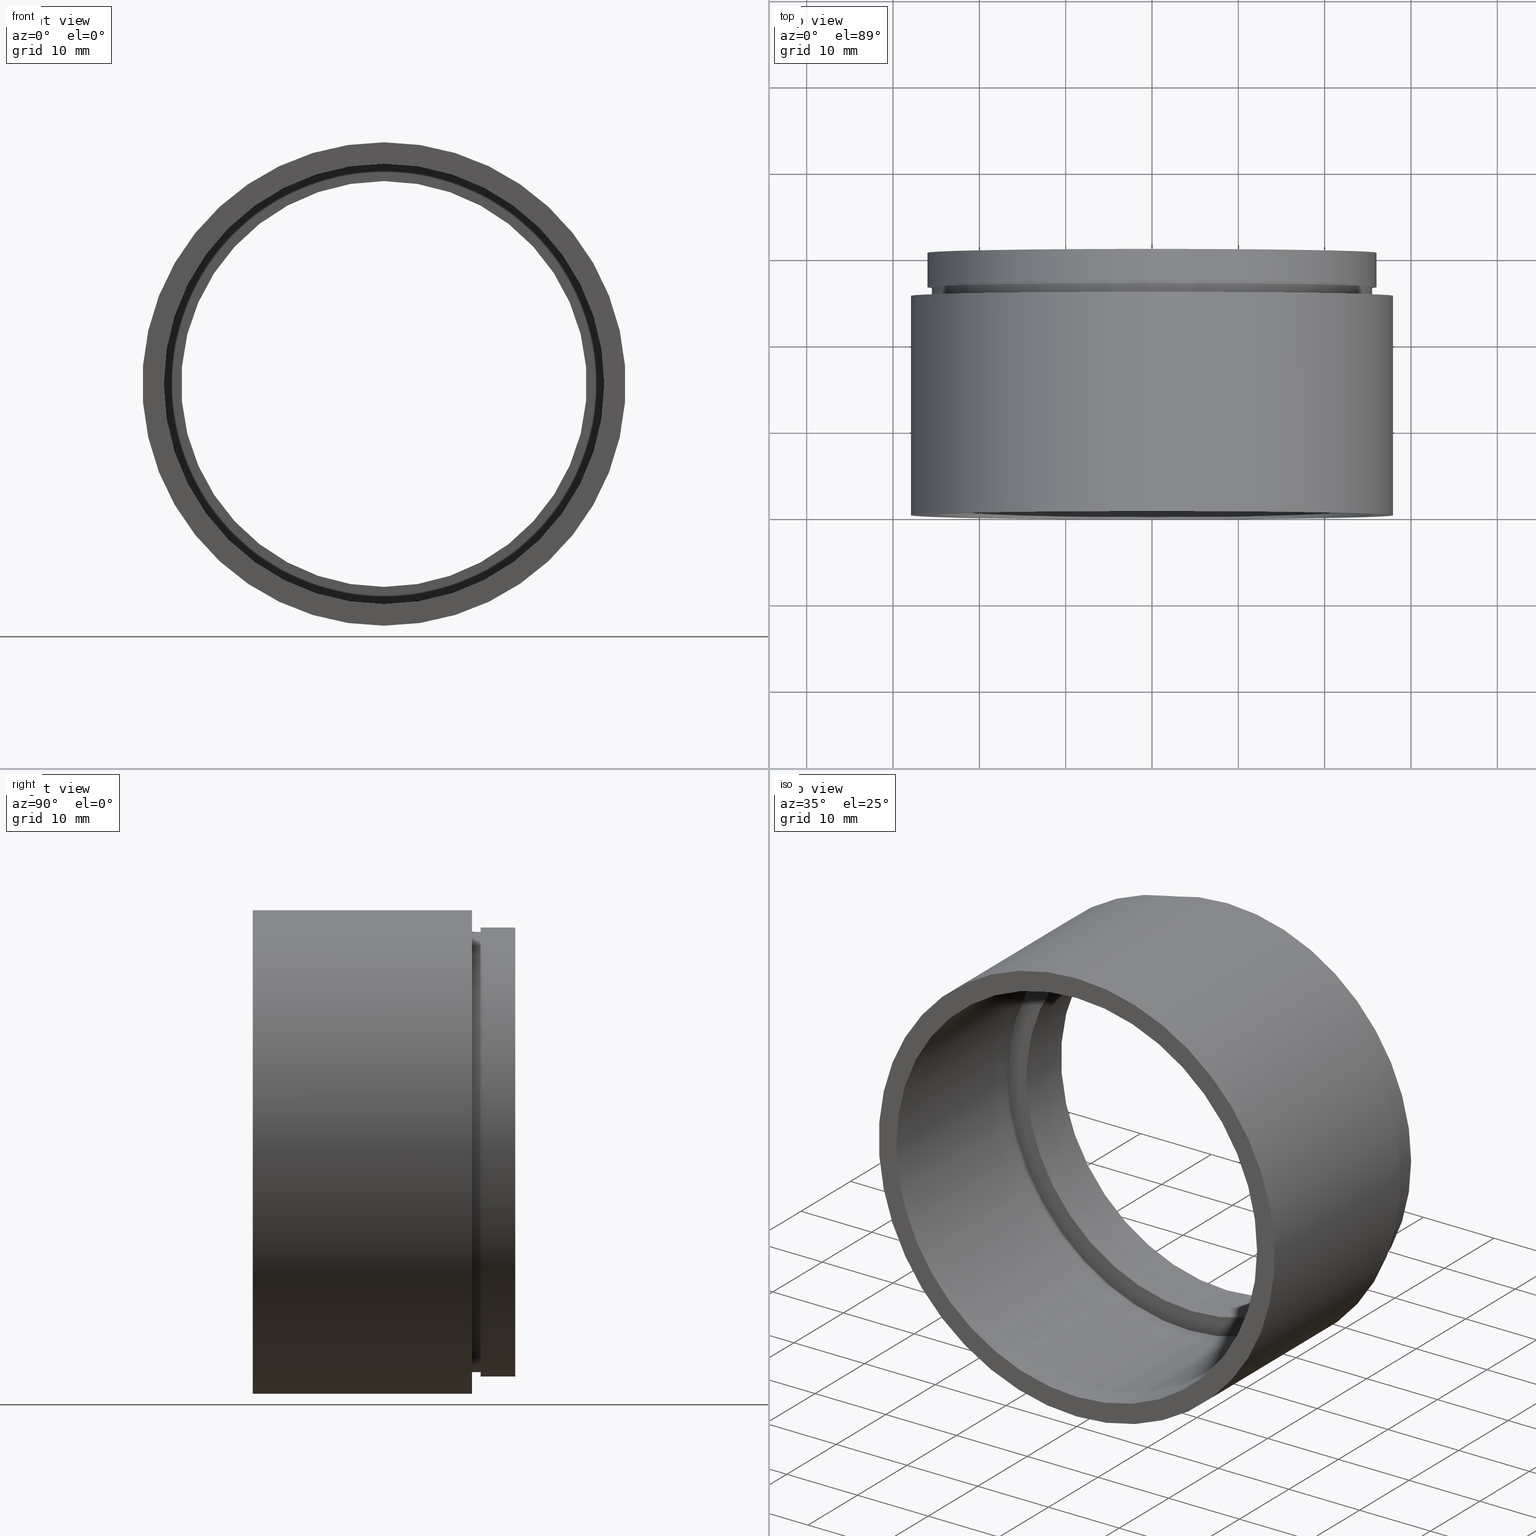
[diagram: canonical four-view strip — front | top / right | iso, engineering-drawing reading convention]
A machine part, canonical four-view strip (front | top / right | iso — engineering-drawing reading convention). The complete STEP part file that produces these views, byte-faithful:
ISO-10303-21;
HEADER;
FILE_DESCRIPTION (( 'STEP AP214' ),
    '1' );
FILE_NAME ('503003.STEP',
    '2019-09-04T05:16:09',
    ( '' ),
    ( '' ),
    'SwSTEP 2.0',
    'SolidWorks 2016',
    '' );
FILE_SCHEMA (( 'AUTOMOTIVE_DESIGN' ));
ENDSEC;

DATA;
#1 = CARTESIAN_POINT ( 'NONE',  ( 3.122849337825752200E-015, 25.39999999999997700, -25.50000000000001100 ) ) ;
#2 = PRESENTATION_LAYER_ASSIGNMENT (  '', '', ( #590 ) ) ;
#3 = DIRECTION ( 'NONE',  ( 0.0000000000000000000, 0.0000000000000000000, 1.000000000000000000 ) ) ;
#4 = CARTESIAN_POINT ( 'NONE',  ( 0.0000000000000000000, 26.39999999999997700, 0.0000000000000000000 ) ) ;
#5 = VERTEX_POINT ( 'NONE', #621 ) ;
#6 = EDGE_LOOP ( 'NONE', ( #161, #217 ) ) ;
#7 = DIRECTION ( 'NONE',  ( -0.0000000000000000000, 1.000000000000000000, -0.0000000000000000000 ) ) ;
#8 = FACE_OUTER_BOUND ( 'NONE', #469, .T. ) ;
#9 = CARTESIAN_POINT ( 'NONE',  ( 0.0000000000000000000, 161.3761669434274500, 0.0000000000000000000 ) ) ;
#10 = DIRECTION ( 'NONE',  ( 0.0000000000000000000, 0.0000000000000000000, 1.000000000000000000 ) ) ;
#11 = PRESENTATION_STYLE_ASSIGNMENT (( #225 ) ) ;
#12 = DIRECTION ( 'NONE',  ( 0.0000000000000000000, 0.0000000000000000000, 1.000000000000000000 ) ) ;
#13 = CIRCLE ( 'NONE', #137, 26.00000000000002100 ) ;
#14 = EDGE_LOOP ( 'NONE', ( #84, #276, #449, #327 ) ) ;
#15 = FACE_OUTER_BOUND ( 'NONE', #345, .T. ) ;
#16 = CARTESIAN_POINT ( 'NONE',  ( 26.10000000000001600, 23.39999999999998800, 0.0000000000000000000 ) ) ;
#17 = ADVANCED_FACE ( 'NONE', ( #533, #618 ), #58, .F. ) ;
#18 = EDGE_CURVE ( 'NONE', #520, #239, #389, .T. ) ;
#19 = DIRECTION ( 'NONE',  ( 0.0000000000000000000, 0.0000000000000000000, 1.000000000000000000 ) ) ;
#20 = DIRECTION ( 'NONE',  ( 0.0000000000000000000, 0.0000000000000000000, 1.000000000000000000 ) ) ;
#21 = AXIS2_PLACEMENT_3D ( 'NONE', #368, #316, #12 ) ;
#22 = ORIENTED_EDGE ( 'NONE', *, *, #41, .F. ) ;
#23 = ORIENTED_EDGE ( 'NONE', *, *, #167, .T. ) ;
#24 = CYLINDRICAL_SURFACE ( 'NONE', #614, 23.50000000000001400 ) ;
#25 = APPLICATION_PROTOCOL_DEFINITION ( 'draft international standard', 'automotive_design', 1998, #595 ) ;
#26 = CIRCLE ( 'NONE', #261, 28.00000000000001800 ) ;
#27 = AXIS2_PLACEMENT_3D ( 'NONE', #9, #57, #405 ) ;
#28 = ADVANCED_FACE ( 'NONE', ( #551 ), #114, .T. ) ;
#29 = AXIS2_PLACEMENT_3D ( 'NONE', #379, #128, #188 ) ;
#30 = CIRCLE ( 'NONE', #344, 23.50000000000001400 ) ;
#31 = ORIENTED_EDGE ( 'NONE', *, *, #552, .T. ) ;
#32 = DIRECTION ( 'NONE',  ( -0.0000000000000000000, 1.000000000000000000, -0.0000000000000000000 ) ) ;
#33 =( NAMED_UNIT ( * ) PLANE_ANGLE_UNIT ( ) SI_UNIT ( $, .RADIAN. ) );
#34 = PRESENTATION_LAYER_ASSIGNMENT (  '', '', ( #63 ) ) ;
#35 = EDGE_LOOP ( 'NONE', ( #490, #245 ) ) ;
#36 = CARTESIAN_POINT ( 'NONE',  ( 25.50000000000001800, 22.39999999999998400, 0.0000000000000000000 ) ) ;
#37 = UNCERTAINTY_MEASURE_WITH_UNIT (LENGTH_MEASURE( 1.000000000000000100E-005 ), #151, 'distance_accuracy_value', 'NONE');
#38 = COLOUR_RGB ( '',1.000000000000000000, 1.000000000000000000, 1.000000000000000000 ) ;
#39 = CARTESIAN_POINT ( 'NONE',  ( 0.0000000000000000000, 23.39999999999997700, 23.50000000000001400 ) ) ;
#40 =( GEOMETRIC_REPRESENTATION_CONTEXT ( 3 ) GLOBAL_UNCERTAINTY_ASSIGNED_CONTEXT ( ( #455 ) ) GLOBAL_UNIT_ASSIGNED_CONTEXT ( ( #227, #278, #174 ) ) REPRESENTATION_CONTEXT ( 'NONE', 'WORKASPACE' ) );
#41 = EDGE_CURVE ( 'NONE', #343, #572, #178, .T. ) ;
#42 =( LENGTH_UNIT ( ) NAMED_UNIT ( * ) SI_UNIT ( .MILLI., .METRE. ) );
#43 = ORIENTED_EDGE ( 'NONE', *, *, #524, .F. ) ;
#44 = DIRECTION ( 'NONE',  ( -0.0000000000000000000, 1.000000000000000000, -0.0000000000000000000 ) ) ;
#45 = CIRCLE ( 'NONE', #473, 25.50000000000001100 ) ;
#46 = CARTESIAN_POINT ( 'NONE',  ( 0.0000000000000000000, 30.39999999999998400, 26.00000000000001800 ) ) ;
#47 = CARTESIAN_POINT ( 'NONE',  ( 3.122849337825753000E-015, 22.39999999999997700, -25.50000000000001800 ) ) ;
#48 =( GEOMETRIC_REPRESENTATION_CONTEXT ( 3 ) GLOBAL_UNCERTAINTY_ASSIGNED_CONTEXT ( ( #517 ) ) GLOBAL_UNIT_ASSIGNED_CONTEXT ( ( #216, #270, #576 ) ) REPRESENTATION_CONTEXT ( 'NONE', 'WORKASPACE' ) );
#49 = UNCERTAINTY_MEASURE_WITH_UNIT (LENGTH_MEASURE( 1.000000000000000100E-005 ), #370, 'distance_accuracy_value', 'NONE');
#50 = CARTESIAN_POINT ( 'NONE',  ( 23.50000000000001400, 30.39999999999998400, 0.0000000000000000000 ) ) ;
#51 = AXIS2_PLACEMENT_3D ( 'NONE', #311, #487, #52 ) ;
#52 = DIRECTION ( 'NONE',  ( 0.0000000000000000000, 0.0000000000000000000, 1.000000000000000000 ) ) ;
#53 = VERTEX_POINT ( 'NONE', #530 ) ;
#54 = VERTEX_POINT ( 'NONE', #47 ) ;
#55 = DIRECTION ( 'NONE',  ( -0.0000000000000000000, 1.000000000000000000, -0.0000000000000000000 ) ) ;
#56 = DIRECTION ( 'NONE',  ( -0.0000000000000000000, 1.000000000000000000, -0.0000000000000000000 ) ) ;
#57 = DIRECTION ( 'NONE',  ( -0.0000000000000000000, 1.000000000000000000, -0.0000000000000000000 ) ) ;
#58 = PLANE ( 'NONE',  #117 ) ;
#59 = ORIENTED_EDGE ( 'NONE', *, *, #215, .T. ) ;
#60 =( GEOMETRIC_REPRESENTATION_CONTEXT ( 3 ) GLOBAL_UNCERTAINTY_ASSIGNED_CONTEXT ( ( #499 ) ) GLOBAL_UNIT_ASSIGNED_CONTEXT ( ( #122, #597, #467 ) ) REPRESENTATION_CONTEXT ( 'NONE', 'WORKASPACE' ) );
#61 = ORIENTED_EDGE ( 'NONE', *, *, #390, .T. ) ;
#62 = CARTESIAN_POINT ( 'NONE',  ( 0.0000000000000000000, 26.39999999999997700, 0.0000000000000000000 ) ) ;
#63 = STYLED_ITEM ( 'NONE', ( #156 ), #187 ) ;
#64 = CARTESIAN_POINT ( 'NONE',  ( 3.196328145774593900E-015, 22.39999999999997700, -26.10000000000001600 ) ) ;
#65 = VECTOR ( 'NONE', #377, 1000.000000000000000 ) ;
#66 = ADVANCED_FACE ( 'NONE', ( #585 ), #497, .T. ) ;
#67 = CARTESIAN_POINT ( 'NONE',  ( 3.122849337825753000E-015, -2.775557561562891400E-014, -25.50000000000001800 ) ) ;
#68 = ORIENTED_EDGE ( 'NONE', *, *, #552, .F. ) ;
#69 = EDGE_LOOP ( 'NONE', ( #410, #460 ) ) ;
#70 = UNCERTAINTY_MEASURE_WITH_UNIT (LENGTH_MEASURE( 1.000000000000000100E-005 ), #42, 'distance_accuracy_value', 'NONE');
#71 = CIRCLE ( 'NONE', #531, 26.10000000000001600 ) ;
#72 = MECHANICAL_DESIGN_GEOMETRIC_PRESENTATION_REPRESENTATION (  '', ( #590 ), #103 ) ;
#73 = CARTESIAN_POINT ( 'NONE',  ( 0.0000000000000000000, 22.39999999999997700, 25.50000000000001800 ) ) ;
#74 = AXIS2_PLACEMENT_3D ( 'NONE', #544, #589, #214 ) ;
#75 = EDGE_CURVE ( 'NONE', #350, #5, #30, .T. ) ;
#76 = VERTEX_POINT ( 'NONE', #67 ) ;
#77 = CARTESIAN_POINT ( 'NONE',  ( 0.0000000000000000000, 22.39999999999997700, 0.0000000000000000000 ) ) ;
#78 = UNCERTAINTY_MEASURE_WITH_UNIT (LENGTH_MEASURE( 1.000000000000000100E-005 ), #136, 'distance_accuracy_value', 'NONE');
#79 = CYLINDRICAL_SURFACE ( 'NONE', #150, 25.50000000000001800 ) ;
#80 = CARTESIAN_POINT ( 'NONE',  ( 0.0000000000000000000, 161.3761669434274500, 0.0000000000000000000 ) ) ;
#81 = CARTESIAN_POINT ( 'NONE',  ( 3.196328145774593900E-015, 161.3761669434274500, -26.10000000000001600 ) ) ;
#82 = EDGE_CURVE ( 'NONE', #239, #520, #13, .T. ) ;
#83 =( NAMED_UNIT ( * ) SI_UNIT ( $, .STERADIAN. ) SOLID_ANGLE_UNIT ( ) );
#84 = ORIENTED_EDGE ( 'NONE', *, *, #97, .F. ) ;
#85 = FACE_BOUND ( 'NONE', #426, .T. ) ;
#86 = VECTOR ( 'NONE', #88, 1000.000000000000000 ) ;
#87 = AXIS2_PLACEMENT_3D ( 'NONE', #317, #452, #369 ) ;
#88 = DIRECTION ( 'NONE',  ( -0.0000000000000000000, 1.000000000000000000, -0.0000000000000000000 ) ) ;
#89 = LINE ( 'NONE', #160, #445 ) ;
#90 = FILL_AREA_STYLE ('',( #624 ) ) ;
#91 = ORIENTED_EDGE ( 'NONE', *, *, #262, .T. ) ;
#92 = DIRECTION ( 'NONE',  ( 0.0000000000000000000, 0.0000000000000000000, 1.000000000000000000 ) ) ;
#93 = ORIENTED_EDGE ( 'NONE', *, *, #566, .F. ) ;
#94 = LINE ( 'NONE', #81, #102 ) ;
#95 = EDGE_CURVE ( 'NONE', #434, #322, #409, .T. ) ;
#96 = CARTESIAN_POINT ( 'NONE',  ( 0.0000000000000000000, 23.39999999999997700, 0.0000000000000000000 ) ) ;
#97 = EDGE_CURVE ( 'NONE', #76, #54, #280, .T. ) ;
#98 = FACE_OUTER_BOUND ( 'NONE', #275, .T. ) ;
#99 = EDGE_LOOP ( 'NONE', ( #224, #337, #91, #479 ) ) ;
#100 = CYLINDRICAL_SURFACE ( 'NONE', #27, 28.00000000000001800 ) ;
#101 = SURFACE_STYLE_USAGE ( .BOTH. , #104 ) ;
#102 = VECTOR ( 'NONE', #333, 1000.000000000000000 ) ;
#103 =( GEOMETRIC_REPRESENTATION_CONTEXT ( 3 ) GLOBAL_UNCERTAINTY_ASSIGNED_CONTEXT ( ( #70 ) ) GLOBAL_UNIT_ASSIGNED_CONTEXT ( ( #42, #563, #388 ) ) REPRESENTATION_CONTEXT ( 'NONE', 'WORKASPACE' ) );
#104 = SURFACE_SIDE_STYLE ('',( #109 ) ) ;
#105 = PRESENTATION_LAYER_ASSIGNMENT (  '', '', ( #461 ) ) ;
#106 = ORIENTED_EDGE ( 'NONE', *, *, #493, .T. ) ;
#107 = SURFACE_STYLE_USAGE ( .BOTH. , #168 ) ;
#108 = ORIENTED_EDGE ( 'NONE', *, *, #82, .F. ) ;
#109 = SURFACE_STYLE_FILL_AREA ( #403 ) ;
#110 = CARTESIAN_POINT ( 'NONE',  ( 3.429011037612590900E-015, -2.775557561562891400E-014, -28.00000000000001800 ) ) ;
#111 = DIRECTION ( 'NONE',  ( -0.0000000000000000000, 1.000000000000000000, -0.0000000000000000000 ) ) ;
#112 = CIRCLE ( 'NONE', #241, 25.50000000000001100 ) ;
#113 = DIRECTION ( 'NONE',  ( 0.0000000000000000000, 0.0000000000000000000, 1.000000000000000000 ) ) ;
#114 = CYLINDRICAL_SURFACE ( 'NONE', #453, 28.00000000000001800 ) ;
#115 = ORIENTED_EDGE ( 'NONE', *, *, #279, .T. ) ;
#116 = CARTESIAN_POINT ( 'NONE',  ( 3.184081677783121000E-015, 26.39999999999997700, -26.00000000000002100 ) ) ;
#117 = AXIS2_PLACEMENT_3D ( 'NONE', #50, #573, #308 ) ;
#118 = VECTOR ( 'NONE', #238, 1000.000000000000000 ) ;
#119 = AXIS2_PLACEMENT_3D ( 'NONE', #541, #423, #131 ) ;
#120 = DIRECTION ( 'NONE',  ( -0.0000000000000000000, 1.000000000000000000, -0.0000000000000000000 ) ) ;
#121 = FACE_BOUND ( 'NONE', #556, .T. ) ;
#122 =( LENGTH_UNIT ( ) NAMED_UNIT ( * ) SI_UNIT ( .MILLI., .METRE. ) );
#123 = CARTESIAN_POINT ( 'NONE',  ( 0.0000000000000000000, 161.3761669434274500, 28.00000000000001800 ) ) ;
#124 = ORIENTED_EDGE ( 'NONE', *, *, #215, .F. ) ;
#125 = ORIENTED_EDGE ( 'NONE', *, *, #424, .T. ) ;
#126 =( NAMED_UNIT ( * ) SI_UNIT ( $, .STERADIAN. ) SOLID_ANGLE_UNIT ( ) );
#127 = AXIS2_PLACEMENT_3D ( 'NONE', #471, #283, #338 ) ;
#128 = DIRECTION ( 'NONE',  ( -0.0000000000000000000, 1.000000000000000000, -0.0000000000000000000 ) ) ;
#129 = ADVANCED_FACE ( 'NONE', ( #98 ), #79, .F. ) ;
#130 = COLOUR_RGB ( '',1.000000000000000000, 1.000000000000000000, 1.000000000000000000 ) ;
#131 = DIRECTION ( 'NONE',  ( 0.0000000000000000000, 0.0000000000000000000, 1.000000000000000000 ) ) ;
#132 = EDGE_LOOP ( 'NONE', ( #457, #610 ) ) ;
#133 = CARTESIAN_POINT ( 'NONE',  ( 2.877919977996281900E-015, 161.3761669434274500, -23.50000000000001400 ) ) ;
#134 = PRESENTATION_STYLE_ASSIGNMENT (( #303 ) ) ;
#135 = DIRECTION ( 'NONE',  ( 0.0000000000000000000, 0.0000000000000000000, 1.000000000000000000 ) ) ;
#136 =( LENGTH_UNIT ( ) NAMED_UNIT ( * ) SI_UNIT ( .MILLI., .METRE. ) );
#137 = AXIS2_PLACEMENT_3D ( 'NONE', #447, #258, #584 ) ;
#138 = DIRECTION ( 'NONE',  ( 0.0000000000000000000, -0.0000000000000000000, -1.000000000000000000 ) ) ;
#139 = VERTEX_POINT ( 'NONE', #502 ) ;
#140 = ADVANCED_FACE ( 'NONE', ( #212 ), #472, .T. ) ;
#141 = ORIENTED_EDGE ( 'NONE', *, *, #493, .F. ) ;
#142 = CIRCLE ( 'NONE', #228, 25.50000000000001800 ) ;
#143 = STYLED_ITEM ( 'NONE', ( #256 ), #376 ) ;
#144 = EDGE_CURVE ( 'NONE', #163, #282, #297, .T. ) ;
#145 =( NAMED_UNIT ( * ) SI_UNIT ( $, .STERADIAN. ) SOLID_ANGLE_UNIT ( ) );
#146 = EDGE_CURVE ( 'NONE', #54, #609, #393, .T. ) ;
#147 = VECTOR ( 'NONE', #213, 1000.000000000000000 ) ;
#148 = DIRECTION ( 'NONE',  ( -0.0000000000000000000, 1.000000000000000000, -0.0000000000000000000 ) ) ;
#149 = CARTESIAN_POINT ( 'NONE',  ( 0.0000000000000000000, 161.3761669434274500, 0.0000000000000000000 ) ) ;
#150 = AXIS2_PLACEMENT_3D ( 'NONE', #359, #448, #260 ) ;
#151 =( LENGTH_UNIT ( ) NAMED_UNIT ( * ) SI_UNIT ( .MILLI., .METRE. ) );
#152 = MECHANICAL_DESIGN_GEOMETRIC_PRESENTATION_REPRESENTATION (  '', ( #394 ), #571 ) ;
#153 = ORIENTED_EDGE ( 'NONE', *, *, #352, .T. ) ;
#154 = ORIENTED_EDGE ( 'NONE', *, *, #234, .T. ) ;
#155 = DIRECTION ( 'NONE',  ( 0.0000000000000000000, 0.0000000000000000000, 1.000000000000000000 ) ) ;
#156 = PRESENTATION_STYLE_ASSIGNMENT (( #515 ) ) ;
#157 = PLANE ( 'NONE',  #51 ) ;
#158 = CARTESIAN_POINT ( 'NONE',  ( 0.0000000000000000000, 30.39999999999998400, 0.0000000000000000000 ) ) ;
#159 = DIRECTION ( 'NONE',  ( 0.0000000000000000000, 0.0000000000000000000, 1.000000000000000000 ) ) ;
#160 = CARTESIAN_POINT ( 'NONE',  ( 0.0000000000000000000, 161.3761669434274500, 25.50000000000001800 ) ) ;
#161 = ORIENTED_EDGE ( 'NONE', *, *, #207, .T. ) ;
#162 = MECHANICAL_DESIGN_GEOMETRIC_PRESENTATION_REPRESENTATION (  '', ( #463 ), #48 ) ;
#163 = VERTEX_POINT ( 'NONE', #495 ) ;
#164 = PRESENTATION_STYLE_ASSIGNMENT (( #612 ) ) ;
#165 = FACE_OUTER_BOUND ( 'NONE', #592, .T. ) ;
#166 = CARTESIAN_POINT ( 'NONE',  ( 28.00000000000001800, -1.408179048343280700E-014, 0.0000000000000000000 ) ) ;
#167 = EDGE_CURVE ( 'NONE', #5, #350, #603, .T. ) ;
#168 = SURFACE_SIDE_STYLE ('',( #263 ) ) ;
#169 = CYLINDRICAL_SURFACE ( 'NONE', #205, 25.50000000000001800 ) ;
#170 = ORIENTED_EDGE ( 'NONE', *, *, #75, .F. ) ;
#171 = CARTESIAN_POINT ( 'NONE',  ( 0.0000000000000000000, 25.39999999999997700, 0.0000000000000000000 ) ) ;
#172 = PRESENTATION_LAYER_ASSIGNMENT (  '', '', ( #202 ) ) ;
#173 = COLOUR_RGB ( '',1.000000000000000000, 1.000000000000000000, 1.000000000000000000 ) ;
#174 =( NAMED_UNIT ( * ) SI_UNIT ( $, .STERADIAN. ) SOLID_ANGLE_UNIT ( ) );
#175 = UNCERTAINTY_MEASURE_WITH_UNIT (LENGTH_MEASURE( 1.000000000000000100E-005 ), #619, 'distance_accuracy_value', 'NONE');
#176 = FILL_AREA_STYLE ('',( #599 ) ) ;
#177 = MECHANICAL_DESIGN_GEOMETRIC_PRESENTATION_REPRESENTATION (  '', ( #202 ), #189 ) ;
#178 = CIRCLE ( 'NONE', #406, 28.00000000000001400 ) ;
#179 = VERTEX_POINT ( 'NONE', #64 ) ;
#180 = CIRCLE ( 'NONE', #523, 23.50000000000001400 ) ;
#181 = APPLICATION_CONTEXT ( 'automotive_design' ) ;
#182 = DIRECTION ( 'NONE',  ( -0.0000000000000000000, 1.000000000000000000, -0.0000000000000000000 ) ) ;
#183 = DIRECTION ( 'NONE',  ( 0.0000000000000000000, 0.0000000000000000000, 1.000000000000000000 ) ) ;
#184 = EDGE_CURVE ( 'NONE', #226, #572, #464, .T. ) ;
#185 = DIRECTION ( 'NONE',  ( -0.0000000000000000000, 1.000000000000000000, -0.0000000000000000000 ) ) ;
#186 = EDGE_LOOP ( 'NONE', ( #417, #154, #384, #539 ) ) ;
#187 = MANIFOLD_SOLID_BREP ( '��ת1', #315 ) ;
#188 = DIRECTION ( 'NONE',  ( 0.0000000000000000000, 0.0000000000000000000, 1.000000000000000000 ) ) ;
#189 =( GEOMETRIC_REPRESENTATION_CONTEXT ( 3 ) GLOBAL_UNCERTAINTY_ASSIGNED_CONTEXT ( ( #175 ) ) GLOBAL_UNIT_ASSIGNED_CONTEXT ( ( #619, #348, #305 ) ) REPRESENTATION_CONTEXT ( 'NONE', 'WORKASPACE' ) );
#190 = PRESENTATION_STYLE_ASSIGNMENT (( #421 ) ) ;
#191 = DIRECTION ( 'NONE',  ( 0.0000000000000000000, 0.0000000000000000000, 1.000000000000000000 ) ) ;
#192 = EDGE_LOOP ( 'NONE', ( #170, #458 ) ) ;
#193 = SURFACE_SIDE_STYLE ('',( #284 ) ) ;
#194 = LINE ( 'NONE', #230, #86 ) ;
#195 = EDGE_CURVE ( 'NONE', #549, #5, #353, .T. ) ;
#196 = CARTESIAN_POINT ( 'NONE',  ( 0.0000000000000000000, 22.39999999999997700, 0.0000000000000000000 ) ) ;
#197 = DIRECTION ( 'NONE',  ( -0.0000000000000000000, 1.000000000000000000, -0.0000000000000000000 ) ) ;
#198 = EDGE_CURVE ( 'NONE', #53, #139, #268, .T. ) ;
#199 = ORIENTED_EDGE ( 'NONE', *, *, #596, .T. ) ;
#200 = ORIENTED_EDGE ( 'NONE', *, *, #362, .F. ) ;
#201 = CARTESIAN_POINT ( 'NONE',  ( 25.50000000000001100, 25.39999999999998100, 0.0000000000000000000 ) ) ;
#202 = STYLED_ITEM ( 'NONE', ( #134 ), #340 ) ;
#203 = CARTESIAN_POINT ( 'NONE',  ( 2.877919977996281900E-015, 23.39999999999997700, -23.50000000000001400 ) ) ;
#204 = SURFACE_STYLE_FILL_AREA ( #331 ) ;
#205 = AXIS2_PLACEMENT_3D ( 'NONE', #321, #120, #285 ) ;
#206 =( NAMED_UNIT ( * ) PLANE_ANGLE_UNIT ( ) SI_UNIT ( $, .RADIAN. ) );
#207 = EDGE_CURVE ( 'NONE', #357, #565, #219, .T. ) ;
#208 = FILL_AREA_STYLE_COLOUR ( '', #130 ) ;
#209 = ORIENTED_EDGE ( 'NONE', *, *, #524, .T. ) ;
#210 = ORIENTED_EDGE ( 'NONE', *, *, #146, .T. ) ;
#211 = DIRECTION ( 'NONE',  ( -0.0000000000000000000, 1.000000000000000000, -0.0000000000000000000 ) ) ;
#212 = FACE_OUTER_BOUND ( 'NONE', #586, .T. ) ;
#213 = DIRECTION ( 'NONE',  ( -0.0000000000000000000, 1.000000000000000000, -0.0000000000000000000 ) ) ;
#214 = DIRECTION ( 'NONE',  ( 0.0000000000000000000, 0.0000000000000000000, 1.000000000000000000 ) ) ;
#215 = EDGE_CURVE ( 'NONE', #485, #226, #435, .T. ) ;
#216 =( LENGTH_UNIT ( ) NAMED_UNIT ( * ) SI_UNIT ( .MILLI., .METRE. ) );
#217 = ORIENTED_EDGE ( 'NONE', *, *, #542, .T. ) ;
#218 = FACE_OUTER_BOUND ( 'NONE', #489, .T. ) ;
#219 = CIRCLE ( 'NONE', #127, 26.00000000000001800 ) ;
#220 = PLANE ( 'NONE',  #442 ) ;
#221 = PRODUCT_DEFINITION ( 'δ֪', '', #476, #591 ) ;
#222 = DIRECTION ( 'NONE',  ( -0.0000000000000000000, 1.000000000000000000, -0.0000000000000000000 ) ) ;
#223 = CIRCLE ( 'NONE', #330, 25.50000000000001100 ) ;
#224 = ORIENTED_EDGE ( 'NONE', *, *, #234, .F. ) ;
#225 = SURFACE_STYLE_USAGE ( .BOTH. , #328 ) ;
#226 = VERTEX_POINT ( 'NONE', #287 ) ;
#227 =( LENGTH_UNIT ( ) NAMED_UNIT ( * ) SI_UNIT ( .MILLI., .METRE. ) );
#228 = AXIS2_PLACEMENT_3D ( 'NONE', #253, #259, #354 ) ;
#229 = AXIS2_PLACEMENT_3D ( 'NONE', #4, #56, #536 ) ;
#230 = CARTESIAN_POINT ( 'NONE',  ( 3.184081677783120200E-015, 161.3761669434274500, -26.00000000000001800 ) ) ;
#231 = DIRECTION ( 'NONE',  ( -0.0000000000000000000, 1.000000000000000000, -0.0000000000000000000 ) ) ;
#232 = PRESENTATION_LAYER_ASSIGNMENT (  '', '', ( #360 ) ) ;
#233 = ORIENTED_EDGE ( 'NONE', *, *, #431, .T. ) ;
#234 = EDGE_CURVE ( 'NONE', #520, #565, #194, .T. ) ;
#235 = DIRECTION ( 'NONE',  ( 0.0000000000000000000, 0.0000000000000000000, 1.000000000000000000 ) ) ;
#236 = FACE_OUTER_BOUND ( 'NONE', #470, .T. ) ;
#237 = EDGE_CURVE ( 'NONE', #485, #343, #559, .T. ) ;
#238 = DIRECTION ( 'NONE',  ( -0.0000000000000000000, 1.000000000000000000, -0.0000000000000000000 ) ) ;
#239 = VERTEX_POINT ( 'NONE', #606 ) ;
#240 = SURFACE_STYLE_USAGE ( .BOTH. , #522 ) ;
#241 = AXIS2_PLACEMENT_3D ( 'NONE', #171, #222, #550 ) ;
#242 = VERTEX_POINT ( 'NONE', #39 ) ;
#243 = EDGE_CURVE ( 'NONE', #179, #53, #94, .T. ) ;
#244 = CARTESIAN_POINT ( 'NONE',  ( 3.122849337825752200E-015, 26.39999999999997700, -25.50000000000001100 ) ) ;
#245 = ORIENTED_EDGE ( 'NONE', *, *, #198, .F. ) ;
#246 =( LENGTH_UNIT ( ) NAMED_UNIT ( * ) SI_UNIT ( .MILLI., .METRE. ) );
#247 = FACE_OUTER_BOUND ( 'NONE', #99, .T. ) ;
#248 = MECHANICAL_DESIGN_GEOMETRIC_PRESENTATION_REPRESENTATION (  '', ( #63 ), #503 ) ;
#249 = DIRECTION ( 'NONE',  ( -0.0000000000000000000, 1.000000000000000000, -0.0000000000000000000 ) ) ;
#250 = DIRECTION ( 'NONE',  ( -0.0000000000000000000, 1.000000000000000000, -0.0000000000000000000 ) ) ;
#251 =( GEOMETRIC_REPRESENTATION_CONTEXT ( 3 ) GLOBAL_UNCERTAINTY_ASSIGNED_CONTEXT ( ( #443 ) ) GLOBAL_UNIT_ASSIGNED_CONTEXT ( ( #246, #429, #145 ) ) REPRESENTATION_CONTEXT ( 'NONE', 'WORKASPACE' ) );
#252 = DIRECTION ( 'NONE',  ( 0.0000000000000000000, -0.0000000000000000000, -1.000000000000000000 ) ) ;
#253 = CARTESIAN_POINT ( 'NONE',  ( 0.0000000000000000000, -2.775557561562891400E-014, 0.0000000000000000000 ) ) ;
#254 = ORIENTED_EDGE ( 'NONE', *, *, #195, .F. ) ;
#255 = ORIENTED_EDGE ( 'NONE', *, *, #312, .T. ) ;
#256 = PRESENTATION_STYLE_ASSIGNMENT (( #101 ) ) ;
#257 = CARTESIAN_POINT ( 'NONE',  ( 0.0000000000000000000, 22.39999999999997700, 0.0000000000000000000 ) ) ;
#258 = DIRECTION ( 'NONE',  ( -0.0000000000000000000, 1.000000000000000000, -0.0000000000000000000 ) ) ;
#259 = DIRECTION ( 'NONE',  ( -0.0000000000000000000, 1.000000000000000000, -0.0000000000000000000 ) ) ;
#260 = DIRECTION ( 'NONE',  ( 0.0000000000000000000, 0.0000000000000000000, 1.000000000000000000 ) ) ;
#261 = AXIS2_PLACEMENT_3D ( 'NONE', #265, #501, #450 ) ;
#262 = EDGE_CURVE ( 'NONE', #239, #357, #577, .T. ) ;
#263 = SURFACE_STYLE_FILL_AREA ( #313 ) ;
#264 = ORIENTED_EDGE ( 'NONE', *, *, #579, .F. ) ;
#265 = CARTESIAN_POINT ( 'NONE',  ( 0.0000000000000000000, -2.775557561562891400E-014, 0.0000000000000000000 ) ) ;
#266 = ADVANCED_FACE ( 'NONE', ( #346, #323 ), #518, .F. ) ;
#267 = CARTESIAN_POINT ( 'NONE',  ( 0.0000000000000000000, 161.3761669434274500, 25.50000000000001100 ) ) ;
#268 = CIRCLE ( 'NONE', #318, 26.10000000000001600 ) ;
#269 = CARTESIAN_POINT ( 'NONE',  ( 0.0000000000000000000, 25.39999999999997700, 28.00000000000001400 ) ) ;
#270 =( NAMED_UNIT ( * ) PLANE_ANGLE_UNIT ( ) SI_UNIT ( $, .RADIAN. ) );
#271 = DIRECTION ( 'NONE',  ( -0.0000000000000000000, 1.000000000000000000, -0.0000000000000000000 ) ) ;
#272 = FACE_OUTER_BOUND ( 'NONE', #14, .T. ) ;
#273 = DIRECTION ( 'NONE',  ( 0.0000000000000000000, 0.0000000000000000000, 1.000000000000000000 ) ) ;
#274 = AXIS2_PLACEMENT_3D ( 'NONE', #568, #44, #482 ) ;
#275 = EDGE_LOOP ( 'NONE', ( #505, #292, #210, #93 ) ) ;
#276 = ORIENTED_EDGE ( 'NONE', *, *, #390, .F. ) ;
#277 = FACE_BOUND ( 'NONE', #601, .T. ) ;
#278 =( NAMED_UNIT ( * ) PLANE_ANGLE_UNIT ( ) SI_UNIT ( $, .RADIAN. ) );
#279 = EDGE_CURVE ( 'NONE', #76, #391, #411, .T. ) ;
#280 = LINE ( 'NONE', #363, #511 ) ;
#281 = SURFACE_SIDE_STYLE ('',( #204 ) ) ;
#282 = VERTEX_POINT ( 'NONE', #468 ) ;
#283 = DIRECTION ( 'NONE',  ( -0.0000000000000000000, 1.000000000000000000, -0.0000000000000000000 ) ) ;
#284 = SURFACE_STYLE_FILL_AREA ( #392 ) ;
#285 = DIRECTION ( 'NONE',  ( 0.0000000000000000000, 0.0000000000000000000, 1.000000000000000000 ) ) ;
#286 = PRESENTATION_LAYER_ASSIGNMENT (  '', '', ( #463 ) ) ;
#287 = CARTESIAN_POINT ( 'NONE',  ( 0.0000000000000000000, -2.775557561562891400E-014, 28.00000000000001800 ) ) ;
#288 = CIRCLE ( 'NONE', #21, 26.10000000000001600 ) ;
#289 = FILL_AREA_STYLE ('',( #381 ) ) ;
#290 = ADVANCED_FACE ( 'NONE', ( #15 ), #302, .F. ) ;
#291 = MECHANICAL_DESIGN_GEOMETRIC_PRESENTATION_REPRESENTATION (  '', ( #360 ), #40 ) ;
#292 = ORIENTED_EDGE ( 'NONE', *, *, #97, .T. ) ;
#293 = EDGE_LOOP ( 'NONE', ( #564, #364, #307, #264 ) ) ;
#294 = SURFACE_STYLE_FILL_AREA ( #90 ) ;
#295 = DIRECTION ( 'NONE',  ( -0.0000000000000000000, 1.000000000000000000, -0.0000000000000000000 ) ) ;
#296 = FACE_OUTER_BOUND ( 'NONE', #293, .T. ) ;
#297 = LINE ( 'NONE', #267, #147 ) ;
#298 = CARTESIAN_POINT ( 'NONE',  ( 0.0000000000000000000, 26.39999999999997700, 0.0000000000000000000 ) ) ;
#299 = ORIENTED_EDGE ( 'NONE', *, *, #41, .T. ) ;
#300 = CYLINDRICAL_SURFACE ( 'NONE', #430, 23.50000000000001400 ) ;
#301 = AXIS2_PLACEMENT_3D ( 'NONE', #560, #32, #235 ) ;
#302 = CYLINDRICAL_SURFACE ( 'NONE', #558, 26.10000000000001600 ) ;
#303 = SURFACE_STYLE_USAGE ( .BOTH. , #193 ) ;
#304 = DIRECTION ( 'NONE',  ( -0.0000000000000000000, 1.000000000000000000, -0.0000000000000000000 ) ) ;
#305 =( NAMED_UNIT ( * ) SI_UNIT ( $, .STERADIAN. ) SOLID_ANGLE_UNIT ( ) );
#306 = ORIENTED_EDGE ( 'NONE', *, *, #237, .T. ) ;
#307 = ORIENTED_EDGE ( 'NONE', *, *, #198, .T. ) ;
#308 = DIRECTION ( 'NONE',  ( 0.0000000000000000000, -0.0000000000000000000, -1.000000000000000000 ) ) ;
#309 = CARTESIAN_POINT ( 'NONE',  ( 0.0000000000000000000, 23.39999999999997700, 0.0000000000000000000 ) ) ;
#310 = FACE_OUTER_BOUND ( 'NONE', #35, .T. ) ;
#311 = CARTESIAN_POINT ( 'NONE',  ( 26.00000000000002100, 26.39999999999998100, 0.0000000000000000000 ) ) ;
#312 = EDGE_CURVE ( 'NONE', #322, #282, #45, .T. ) ;
#313 = FILL_AREA_STYLE ('',( #208 ) ) ;
#314 = CARTESIAN_POINT ( 'NONE',  ( 0.0000000000000000000, 22.39999999999997700, 26.10000000000001600 ) ) ;
#315 = CLOSED_SHELL ( 'NONE', ( #475, #129, #28, #66, #366, #376, #340, #17, #334, #383, #140, #466, #413, #554, #608, #266, #290, #598 ) ) ;
#316 = DIRECTION ( 'NONE',  ( -0.0000000000000000000, 1.000000000000000000, -0.0000000000000000000 ) ) ;
#317 = CARTESIAN_POINT ( 'NONE',  ( 0.0000000000000000000, 23.39999999999997700, 0.0000000000000000000 ) ) ;
#318 = AXIS2_PLACEMENT_3D ( 'NONE', #510, #231, #135 ) ;
#319 = DIRECTION ( 'NONE',  ( -0.0000000000000000000, 1.000000000000000000, -0.0000000000000000000 ) ) ;
#320 = ORIENTED_EDGE ( 'NONE', *, *, #431, .F. ) ;
#321 = CARTESIAN_POINT ( 'NONE',  ( 0.0000000000000000000, 161.3761669434274500, 0.0000000000000000000 ) ) ;
#322 = VERTEX_POINT ( 'NONE', #244 ) ;
#323 = FACE_OUTER_BOUND ( 'NONE', #69, .T. ) ;
#324 = AXIS2_PLACEMENT_3D ( 'NONE', #257, #249, #3 ) ;
#325 = PRODUCT_CONTEXT ( 'NONE', #595, 'mechanical' ) ;
#326 = LINE ( 'NONE', #587, #545 ) ;
#327 = ORIENTED_EDGE ( 'NONE', *, *, #380, .T. ) ;
#328 = SURFACE_SIDE_STYLE ('',( #375 ) ) ;
#329 = VECTOR ( 'NONE', #182, 1000.000000000000000 ) ;
#330 = AXIS2_PLACEMENT_3D ( 'NONE', #62, #494, #581 ) ;
#331 = FILL_AREA_STYLE ('',( #496 ) ) ;
#332 = EDGE_CURVE ( 'NONE', #179, #401, #71, .T. ) ;
#333 = DIRECTION ( 'NONE',  ( -0.0000000000000000000, 1.000000000000000000, -0.0000000000000000000 ) ) ;
#334 = ADVANCED_FACE ( 'NONE', ( #247 ), #623, .T. ) ;
#335 = ORIENTED_EDGE ( 'NONE', *, *, #237, .F. ) ;
#336 = DIRECTION ( 'NONE',  ( 0.0000000000000000000, -1.000000000000000000, 0.0000000000000000000 ) ) ;
#337 = ORIENTED_EDGE ( 'NONE', *, *, #18, .T. ) ;
#338 = DIRECTION ( 'NONE',  ( 0.0000000000000000000, 0.0000000000000000000, 1.000000000000000000 ) ) ;
#339 = CARTESIAN_POINT ( 'NONE',  ( 0.0000000000000000000, 161.3761669434274500, 26.00000000000001800 ) ) ;
#340 = ADVANCED_FACE ( 'NONE', ( #165 ), #300, .F. ) ;
#341 = DIRECTION ( 'NONE',  ( -0.0000000000000000000, 1.000000000000000000, -0.0000000000000000000 ) ) ;
#342 = MECHANICAL_DESIGN_GEOMETRIC_PRESENTATION_REPRESENTATION (  '', ( #143 ), #504 ) ;
#343 = VERTEX_POINT ( 'NONE', #387 ) ;
#344 = AXIS2_PLACEMENT_3D ( 'NONE', #158, #543, #19 ) ;
#345 = EDGE_LOOP ( 'NONE', ( #462, #527, #440, #199 ) ) ;
#346 = FACE_BOUND ( 'NONE', #132, .T. ) ;
#347 = DIRECTION ( 'NONE',  ( -0.0000000000000000000, 1.000000000000000000, -0.0000000000000000000 ) ) ;
#348 =( NAMED_UNIT ( * ) PLANE_ANGLE_UNIT ( ) SI_UNIT ( $, .RADIAN. ) );
#349 = DIRECTION ( 'NONE',  ( -0.0000000000000000000, 1.000000000000000000, -0.0000000000000000000 ) ) ;
#350 = VERTEX_POINT ( 'NONE', #433 ) ;
#351 = CIRCLE ( 'NONE', #324, 25.50000000000001800 ) ;
#352 = EDGE_CURVE ( 'NONE', #242, #549, #180, .T. ) ;
#353 = LINE ( 'NONE', #133, #329 ) ;
#354 = DIRECTION ( 'NONE',  ( 0.0000000000000000000, 0.0000000000000000000, 1.000000000000000000 ) ) ;
#355 = SHAPE_DEFINITION_REPRESENTATION ( #562, #474 ) ;
#356 = ORIENTED_EDGE ( 'NONE', *, *, #184, .T. ) ;
#357 = VERTEX_POINT ( 'NONE', #46 ) ;
#358 = CARTESIAN_POINT ( 'NONE',  ( 0.0000000000000000000, -2.775557561562891400E-014, 25.50000000000001800 ) ) ;
#359 = CARTESIAN_POINT ( 'NONE',  ( 0.0000000000000000000, 161.3761669434274500, 0.0000000000000000000 ) ) ;
#360 = STYLED_ITEM ( 'NONE', ( #11 ), #474 ) ;
#361 = DIRECTION ( 'NONE',  ( -0.0000000000000000000, 1.000000000000000000, -0.0000000000000000000 ) ) ;
#362 = EDGE_CURVE ( 'NONE', #242, #350, #622, .T. ) ;
#363 = CARTESIAN_POINT ( 'NONE',  ( 3.122849337825753000E-015, 161.3761669434274500, -25.50000000000001800 ) ) ;
#364 = ORIENTED_EDGE ( 'NONE', *, *, #243, .T. ) ;
#365 = AXIS2_PLACEMENT_3D ( 'NONE', #309, #538, #535 ) ;
#366 = ADVANCED_FACE ( 'NONE', ( #540 ), #500, .T. ) ;
#367 = COLOUR_RGB ( '',1.000000000000000000, 1.000000000000000000, 1.000000000000000000 ) ;
#368 = CARTESIAN_POINT ( 'NONE',  ( 0.0000000000000000000, 22.39999999999997700, 0.0000000000000000000 ) ) ;
#369 = DIRECTION ( 'NONE',  ( 0.0000000000000000000, 0.0000000000000000000, 1.000000000000000000 ) ) ;
#370 =( LENGTH_UNIT ( ) NAMED_UNIT ( * ) SI_UNIT ( .MILLI., .METRE. ) );
#371 = ORIENTED_EDGE ( 'NONE', *, *, #362, .T. ) ;
#372 = VECTOR ( 'NONE', #567, 1000.000000000000000 ) ;
#373 = PRESENTATION_LAYER_ASSIGNMENT (  '', '', ( #394 ) ) ;
#374 = AXIS2_PLACEMENT_3D ( 'NONE', #407, #580, #451 ) ;
#375 = SURFACE_STYLE_FILL_AREA ( #176 ) ;
#376 = ADVANCED_FACE ( 'NONE', ( #594 ), #24, .F. ) ;
#377 = DIRECTION ( 'NONE',  ( -0.0000000000000000000, 1.000000000000000000, -0.0000000000000000000 ) ) ;
#378 = ORIENTED_EDGE ( 'NONE', *, *, #95, .F. ) ;
#379 = CARTESIAN_POINT ( 'NONE',  ( 0.0000000000000000000, 30.39999999999998400, 0.0000000000000000000 ) ) ;
#380 = EDGE_CURVE ( 'NONE', #609, #54, #351, .T. ) ;
#381 = FILL_AREA_STYLE_COLOUR ( '', #38 ) ;
#382 = AXIS2_PLACEMENT_3D ( 'NONE', #149, #197, #92 ) ;
#383 = ADVANCED_FACE ( 'NONE', ( #218, #85 ), #157, .F. ) ;
#384 = ORIENTED_EDGE ( 'NONE', *, *, #207, .F. ) ;
#385 = EDGE_LOOP ( 'NONE', ( #106, #306, #519, #557 ) ) ;
#386 = SURFACE_SIDE_STYLE ('',( #521 ) ) ;
#387 = CARTESIAN_POINT ( 'NONE',  ( 3.429011037612590500E-015, 25.39999999999997700, -28.00000000000001400 ) ) ;
#388 =( NAMED_UNIT ( * ) SI_UNIT ( $, .STERADIAN. ) SOLID_ANGLE_UNIT ( ) );
#389 = CIRCLE ( 'NONE', #229, 26.00000000000002100 ) ;
#390 = EDGE_CURVE ( 'NONE', #391, #76, #142, .T. ) ;
#391 = VERTEX_POINT ( 'NONE', #358 ) ;
#392 = FILL_AREA_STYLE ('',( #613 ) ) ;
#393 = CIRCLE ( 'NONE', #615, 25.50000000000001800 ) ;
#394 = STYLED_ITEM ( 'NONE', ( #190 ), #608 ) ;
#395 = FILL_AREA_STYLE_COLOUR ( '', #480 ) ;
#396 = CARTESIAN_POINT ( 'NONE',  ( 0.0000000000000000000, 161.3761669434274500, 0.0000000000000000000 ) ) ;
#397 = COLOUR_RGB ( '',1.000000000000000000, 1.000000000000000000, 1.000000000000000000 ) ;
#398 = CARTESIAN_POINT ( 'NONE',  ( 0.0000000000000000000, 161.3761669434274500, 0.0000000000000000000 ) ) ;
#399 = ORIENTED_EDGE ( 'NONE', *, *, #312, .F. ) ;
#400 = DIRECTION ( 'NONE',  ( 0.0000000000000000000, 0.0000000000000000000, 1.000000000000000000 ) ) ;
#401 = VERTEX_POINT ( 'NONE', #314 ) ;
#402 = COLOUR_RGB ( '',1.000000000000000000, 1.000000000000000000, 1.000000000000000000 ) ;
#403 = FILL_AREA_STYLE ('',( #395 ) ) ;
#404 = AXIS2_PLACEMENT_3D ( 'NONE', #420, #183, #513 ) ;
#405 = DIRECTION ( 'NONE',  ( 0.0000000000000000000, 0.0000000000000000000, 1.000000000000000000 ) ) ;
#406 = AXIS2_PLACEMENT_3D ( 'NONE', #437, #319, #10 ) ;
#407 = CARTESIAN_POINT ( 'NONE',  ( 0.0000000000000000000, 161.3761669434274500, 0.0000000000000000000 ) ) ;
#408 = CIRCLE ( 'NONE', #74, 26.00000000000001800 ) ;
#409 = LINE ( 'NONE', #454, #432 ) ;
#410 = ORIENTED_EDGE ( 'NONE', *, *, #583, .T. ) ;
#411 = CIRCLE ( 'NONE', #439, 25.50000000000001800 ) ;
#412 = DIRECTION ( 'NONE',  ( -0.0000000000000000000, 1.000000000000000000, 0.0000000000000000000 ) ) ;
#413 = ADVANCED_FACE ( 'NONE', ( #8 ), #100, .T. ) ;
#414 = PLANE ( 'NONE',  #546 ) ;
#415 = FACE_BOUND ( 'NONE', #427, .T. ) ;
#416 = AXIS2_PLACEMENT_3D ( 'NONE', #36, #336, #138 ) ;
#417 = ORIENTED_EDGE ( 'NONE', *, *, #82, .T. ) ;
#418 = AXIS2_PLACEMENT_3D ( 'NONE', #398, #55, #155 ) ;
#419 = EDGE_LOOP ( 'NONE', ( #548, #620, #43, #422 ) ) ;
#420 = CARTESIAN_POINT ( 'NONE',  ( 0.0000000000000000000, 0.0000000000000000000, 0.0000000000000000000 ) ) ;
#421 = SURFACE_STYLE_USAGE ( .BOTH. , #281 ) ;
#422 = ORIENTED_EDGE ( 'NONE', *, *, #144, .F. ) ;
#423 = DIRECTION ( 'NONE',  ( -0.0000000000000000000, 1.000000000000000000, -0.0000000000000000000 ) ) ;
#424 = EDGE_CURVE ( 'NONE', #572, #343, #611, .T. ) ;
#425 = SURFACE_SIDE_STYLE ('',( #588 ) ) ;
#426 = EDGE_LOOP ( 'NONE', ( #209, #255 ) ) ;
#427 = EDGE_LOOP ( 'NONE', ( #61, #115 ) ) ;
#428 = CARTESIAN_POINT ( 'NONE',  ( 0.0000000000000000000, 161.3761669434274500, 0.0000000000000000000 ) ) ;
#429 =( NAMED_UNIT ( * ) PLANE_ANGLE_UNIT ( ) SI_UNIT ( $, .RADIAN. ) );
#430 = AXIS2_PLACEMENT_3D ( 'NONE', #428, #295, #617 ) ;
#431 = EDGE_CURVE ( 'NONE', #549, #242, #508, .T. ) ;
#432 = VECTOR ( 'NONE', #111, 1000.000000000000000 ) ;
#433 = CARTESIAN_POINT ( 'NONE',  ( 0.0000000000000000000, 30.39999999999998400, 23.50000000000001400 ) ) ;
#434 = VERTEX_POINT ( 'NONE', #1 ) ;
#435 = CIRCLE ( 'NONE', #301, 28.00000000000001800 ) ;
#436 = FILL_AREA_STYLE_COLOUR ( '', #402 ) ;
#437 = CARTESIAN_POINT ( 'NONE',  ( 0.0000000000000000000, 25.39999999999997700, 0.0000000000000000000 ) ) ;
#438 =( NAMED_UNIT ( * ) SI_UNIT ( $, .STERADIAN. ) SOLID_ANGLE_UNIT ( ) );
#439 = AXIS2_PLACEMENT_3D ( 'NONE', #528, #349, #484 ) ;
#440 = ORIENTED_EDGE ( 'NONE', *, *, #579, .T. ) ;
#441 = DIRECTION ( 'NONE',  ( 0.0000000000000000000, -1.000000000000000000, 0.0000000000000000000 ) ) ;
#442 = AXIS2_PLACEMENT_3D ( 'NONE', #166, #412, #20 ) ;
#443 = UNCERTAINTY_MEASURE_WITH_UNIT (LENGTH_MEASURE( 1.000000000000000100E-005 ), #246, 'distance_accuracy_value', 'NONE');
#444 = CARTESIAN_POINT ( 'NONE',  ( 0.0000000000000000000, 25.39999999999997700, 0.0000000000000000000 ) ) ;
#445 = VECTOR ( 'NONE', #271, 1000.000000000000000 ) ;
#446 = DIRECTION ( 'NONE',  ( -0.0000000000000000000, 1.000000000000000000, -0.0000000000000000000 ) ) ;
#447 = CARTESIAN_POINT ( 'NONE',  ( 0.0000000000000000000, 26.39999999999997700, 0.0000000000000000000 ) ) ;
#448 = DIRECTION ( 'NONE',  ( -0.0000000000000000000, 1.000000000000000000, -0.0000000000000000000 ) ) ;
#449 = ORIENTED_EDGE ( 'NONE', *, *, #566, .T. ) ;
#450 = DIRECTION ( 'NONE',  ( 0.0000000000000000000, 0.0000000000000000000, 1.000000000000000000 ) ) ;
#451 = DIRECTION ( 'NONE',  ( 0.0000000000000000000, 0.0000000000000000000, 1.000000000000000000 ) ) ;
#452 = DIRECTION ( 'NONE',  ( -0.0000000000000000000, 1.000000000000000000, -0.0000000000000000000 ) ) ;
#453 = AXIS2_PLACEMENT_3D ( 'NONE', #396, #250, #400 ) ;
#454 = CARTESIAN_POINT ( 'NONE',  ( 3.122849337825752200E-015, 161.3761669434274500, -25.50000000000001100 ) ) ;
#455 = UNCERTAINTY_MEASURE_WITH_UNIT (LENGTH_MEASURE( 1.000000000000000100E-005 ), #227, 'distance_accuracy_value', 'NONE');
#456 = MECHANICAL_DESIGN_GEOMETRIC_PRESENTATION_REPRESENTATION (  '', ( #461 ), #251 ) ;
#457 = ORIENTED_EDGE ( 'NONE', *, *, #380, .F. ) ;
#458 = ORIENTED_EDGE ( 'NONE', *, *, #167, .F. ) ;
#459 =( NAMED_UNIT ( * ) PLANE_ANGLE_UNIT ( ) SI_UNIT ( $, .RADIAN. ) );
#460 = ORIENTED_EDGE ( 'NONE', *, *, #332, .T. ) ;
#461 = STYLED_ITEM ( 'NONE', ( #164 ), #366 ) ;
#462 = ORIENTED_EDGE ( 'NONE', *, *, #243, .F. ) ;
#463 = STYLED_ITEM ( 'NONE', ( #526 ), #129 ) ;
#464 = LINE ( 'NONE', #123, #118 ) ;
#465 = DIRECTION ( 'NONE',  ( 0.0000000000000000000, 0.0000000000000000000, 1.000000000000000000 ) ) ;
#466 = ADVANCED_FACE ( 'NONE', ( #277, #491 ), #578, .F. ) ;
#467 =( NAMED_UNIT ( * ) SI_UNIT ( $, .STERADIAN. ) SOLID_ANGLE_UNIT ( ) );
#468 = CARTESIAN_POINT ( 'NONE',  ( 0.0000000000000000000, 26.39999999999997700, 25.50000000000001100 ) ) ;
#469 = EDGE_LOOP ( 'NONE', ( #335, #59, #356, #22 ) ) ;
#470 = EDGE_LOOP ( 'NONE', ( #141, #124 ) ) ;
#471 = CARTESIAN_POINT ( 'NONE',  ( 0.0000000000000000000, 30.39999999999998400, 0.0000000000000000000 ) ) ;
#472 = CYLINDRICAL_SURFACE ( 'NONE', #374, 25.50000000000001100 ) ;
#473 = AXIS2_PLACEMENT_3D ( 'NONE', #298, #148, #191 ) ;
#474 = ADVANCED_BREP_SHAPE_REPRESENTATION ( '503003', ( #187, #404 ), #60 ) ;
#475 = ADVANCED_FACE ( 'NONE', ( #296 ), #607, .F. ) ;
#476 = PRODUCT_DEFINITION_FORMATION_WITH_SPECIFIED_SOURCE ( '�κ�', '', #555, .NOT_KNOWN. ) ;
#477 = CARTESIAN_POINT ( 'NONE',  ( 0.0000000000000000000, 161.3761669434274500, 23.50000000000001400 ) ) ;
#478 = ORIENTED_EDGE ( 'NONE', *, *, #600, .F. ) ;
#479 = ORIENTED_EDGE ( 'NONE', *, *, #542, .F. ) ;
#480 = COLOUR_RGB ( '',1.000000000000000000, 1.000000000000000000, 1.000000000000000000 ) ;
#481 = DIRECTION ( 'NONE',  ( 0.0000000000000000000, 0.0000000000000000000, 1.000000000000000000 ) ) ;
#482 = DIRECTION ( 'NONE',  ( 0.0000000000000000000, 0.0000000000000000000, 1.000000000000000000 ) ) ;
#483 = CARTESIAN_POINT ( 'NONE',  ( 0.0000000000000000000, 161.3761669434274500, 0.0000000000000000000 ) ) ;
#484 = DIRECTION ( 'NONE',  ( 0.0000000000000000000, 0.0000000000000000000, 1.000000000000000000 ) ) ;
#485 = VERTEX_POINT ( 'NONE', #110 ) ;
#486 = VECTOR ( 'NONE', #185, 1000.000000000000000 ) ;
#487 = DIRECTION ( 'NONE',  ( -0.0000000000000000000, 1.000000000000000000, 0.0000000000000000000 ) ) ;
#488 = CIRCLE ( 'NONE', #119, 25.50000000000001100 ) ;
#489 = EDGE_LOOP ( 'NONE', ( #108, #532 ) ) ;
#490 = ORIENTED_EDGE ( 'NONE', *, *, #596, .F. ) ;
#491 = FACE_OUTER_BOUND ( 'NONE', #593, .T. ) ;
#492 = PRESENTATION_LAYER_ASSIGNMENT (  '', '', ( #143 ) ) ;
#493 = EDGE_CURVE ( 'NONE', #226, #485, #26, .T. ) ;
#494 = DIRECTION ( 'NONE',  ( -0.0000000000000000000, 1.000000000000000000, -0.0000000000000000000 ) ) ;
#495 = CARTESIAN_POINT ( 'NONE',  ( 0.0000000000000000000, 25.39999999999997700, 25.50000000000001100 ) ) ;
#496 = FILL_AREA_STYLE_COLOUR ( '', #397 ) ;
#497 = CYLINDRICAL_SURFACE ( 'NONE', #514, 25.50000000000001100 ) ;
#498 = ORIENTED_EDGE ( 'NONE', *, *, #144, .T. ) ;
#499 = UNCERTAINTY_MEASURE_WITH_UNIT (LENGTH_MEASURE( 1.000000000000000100E-005 ), #122, 'distance_accuracy_value', 'NONE');
#500 = CYLINDRICAL_SURFACE ( 'NONE', #382, 26.00000000000001800 ) ;
#501 = DIRECTION ( 'NONE',  ( -0.0000000000000000000, 1.000000000000000000, -0.0000000000000000000 ) ) ;
#502 = CARTESIAN_POINT ( 'NONE',  ( 0.0000000000000000000, 23.39999999999997700, 26.10000000000001600 ) ) ;
#503 =( GEOMETRIC_REPRESENTATION_CONTEXT ( 3 ) GLOBAL_UNCERTAINTY_ASSIGNED_CONTEXT ( ( #78 ) ) GLOBAL_UNIT_ASSIGNED_CONTEXT ( ( #136, #33, #83 ) ) REPRESENTATION_CONTEXT ( 'NONE', 'WORKASPACE' ) );
#504 =( GEOMETRIC_REPRESENTATION_CONTEXT ( 3 ) GLOBAL_UNCERTAINTY_ASSIGNED_CONTEXT ( ( #37 ) ) GLOBAL_UNIT_ASSIGNED_CONTEXT ( ( #151, #206, #438 ) ) REPRESENTATION_CONTEXT ( 'NONE', 'WORKASPACE' ) );
#505 = ORIENTED_EDGE ( 'NONE', *, *, #279, .F. ) ;
#506 = EDGE_LOOP ( 'NONE', ( #320, #575, #23, #200 ) ) ;
#507 = DIRECTION ( 'NONE',  ( -0.0000000000000000000, 1.000000000000000000, -0.0000000000000000000 ) ) ;
#508 = CIRCLE ( 'NONE', #365, 23.50000000000001400 ) ;
#509 = APPLICATION_PROTOCOL_DEFINITION ( 'draft international standard', 'automotive_design', 1998, #181 ) ;
#510 = CARTESIAN_POINT ( 'NONE',  ( 0.0000000000000000000, 23.39999999999997700, 0.0000000000000000000 ) ) ;
#511 = VECTOR ( 'NONE', #211, 1000.000000000000000 ) ;
#512 = ORIENTED_EDGE ( 'NONE', *, *, #352, .F. ) ;
#513 = DIRECTION ( 'NONE',  ( 1.000000000000000000, 0.0000000000000000000, 0.0000000000000000000 ) ) ;
#514 = AXIS2_PLACEMENT_3D ( 'NONE', #483, #304, #113 ) ;
#515 = SURFACE_STYLE_USAGE ( .BOTH. , #425 ) ;
#516 = AXIS2_PLACEMENT_3D ( 'NONE', #201, #441, #252 ) ;
#517 = UNCERTAINTY_MEASURE_WITH_UNIT (LENGTH_MEASURE( 1.000000000000000100E-005 ), #216, 'distance_accuracy_value', 'NONE');
#518 = PLANE ( 'NONE',  #416 ) ;
#519 = ORIENTED_EDGE ( 'NONE', *, *, #424, .F. ) ;
#520 = VERTEX_POINT ( 'NONE', #116 ) ;
#521 = SURFACE_STYLE_FILL_AREA ( #529 ) ;
#522 = SURFACE_SIDE_STYLE ('',( #294 ) ) ;
#523 = AXIS2_PLACEMENT_3D ( 'NONE', #96, #341, #525 ) ;
#524 = EDGE_CURVE ( 'NONE', #282, #322, #223, .T. ) ;
#525 = DIRECTION ( 'NONE',  ( 0.0000000000000000000, 0.0000000000000000000, 1.000000000000000000 ) ) ;
#526 = PRESENTATION_STYLE_ASSIGNMENT (( #107 ) ) ;
#527 = ORIENTED_EDGE ( 'NONE', *, *, #583, .F. ) ;
#528 = CARTESIAN_POINT ( 'NONE',  ( 0.0000000000000000000, -2.775557561562891400E-014, 0.0000000000000000000 ) ) ;
#529 = FILL_AREA_STYLE ('',( #436 ) ) ;
#530 = CARTESIAN_POINT ( 'NONE',  ( 3.196328145774593900E-015, 23.39999999999997700, -26.10000000000001600 ) ) ;
#531 = AXIS2_PLACEMENT_3D ( 'NONE', #196, #347, #569 ) ;
#532 = ORIENTED_EDGE ( 'NONE', *, *, #18, .F. ) ;
#533 = FACE_BOUND ( 'NONE', #192, .T. ) ;
#534 = PRODUCT_RELATED_PRODUCT_CATEGORY ( 'part', '', ( #555 ) ) ;
#535 = DIRECTION ( 'NONE',  ( 0.0000000000000000000, 0.0000000000000000000, 1.000000000000000000 ) ) ;
#536 = DIRECTION ( 'NONE',  ( 0.0000000000000000000, 0.0000000000000000000, 1.000000000000000000 ) ) ;
#537 = DIRECTION ( 'NONE',  ( 0.0000000000000000000, 0.0000000000000000000, 1.000000000000000000 ) ) ;
#538 = DIRECTION ( 'NONE',  ( -0.0000000000000000000, 1.000000000000000000, -0.0000000000000000000 ) ) ;
#539 = ORIENTED_EDGE ( 'NONE', *, *, #262, .F. ) ;
#540 = FACE_OUTER_BOUND ( 'NONE', #186, .T. ) ;
#541 = CARTESIAN_POINT ( 'NONE',  ( 0.0000000000000000000, 25.39999999999997700, 0.0000000000000000000 ) ) ;
#542 = EDGE_CURVE ( 'NONE', #565, #357, #408, .T. ) ;
#543 = DIRECTION ( 'NONE',  ( -0.0000000000000000000, 1.000000000000000000, -0.0000000000000000000 ) ) ;
#544 = CARTESIAN_POINT ( 'NONE',  ( 0.0000000000000000000, 30.39999999999998400, 0.0000000000000000000 ) ) ;
#545 = VECTOR ( 'NONE', #361, 1000.000000000000000 ) ;
#546 = AXIS2_PLACEMENT_3D ( 'NONE', #16, #547, #273 ) ;
#547 = DIRECTION ( 'NONE',  ( -0.0000000000000000000, 1.000000000000000000, 0.0000000000000000000 ) ) ;
#548 = ORIENTED_EDGE ( 'NONE', *, *, #600, .T. ) ;
#549 = VERTEX_POINT ( 'NONE', #203 ) ;
#550 = DIRECTION ( 'NONE',  ( 0.0000000000000000000, 0.0000000000000000000, 1.000000000000000000 ) ) ;
#551 = FACE_OUTER_BOUND ( 'NONE', #385, .T. ) ;
#552 = EDGE_CURVE ( 'NONE', #434, #163, #112, .T. ) ;
#553 = PRESENTATION_STYLE_ASSIGNMENT (( #240 ) ) ;
#554 = ADVANCED_FACE ( 'NONE', ( #236, #415 ), #220, .F. ) ;
#555 = PRODUCT ( '503003', '503003', '', ( #325 ) ) ;
#556 = EDGE_LOOP ( 'NONE', ( #153, #233 ) ) ;
#557 = ORIENTED_EDGE ( 'NONE', *, *, #184, .F. ) ;
#558 = AXIS2_PLACEMENT_3D ( 'NONE', #80, #602, #481 ) ;
#559 = LINE ( 'NONE', #604, #486 ) ;
#560 = CARTESIAN_POINT ( 'NONE',  ( 0.0000000000000000000, -2.775557561562891400E-014, 0.0000000000000000000 ) ) ;
#561 = CIRCLE ( 'NONE', #87, 26.10000000000001600 ) ;
#562 = PRODUCT_DEFINITION_SHAPE ( 'NONE', 'NONE',  #221 ) ;
#563 =( NAMED_UNIT ( * ) PLANE_ANGLE_UNIT ( ) SI_UNIT ( $, .RADIAN. ) );
#564 = ORIENTED_EDGE ( 'NONE', *, *, #332, .F. ) ;
#565 = VERTEX_POINT ( 'NONE', #582 ) ;
#566 = EDGE_CURVE ( 'NONE', #391, #609, #89, .T. ) ;
#567 = DIRECTION ( 'NONE',  ( -0.0000000000000000000, 1.000000000000000000, -0.0000000000000000000 ) ) ;
#568 = CARTESIAN_POINT ( 'NONE',  ( 0.0000000000000000000, 161.3761669434274500, 0.0000000000000000000 ) ) ;
#569 = DIRECTION ( 'NONE',  ( 0.0000000000000000000, 0.0000000000000000000, 1.000000000000000000 ) ) ;
#570 = ORIENTED_EDGE ( 'NONE', *, *, #75, .T. ) ;
#571 =( GEOMETRIC_REPRESENTATION_CONTEXT ( 3 ) GLOBAL_UNCERTAINTY_ASSIGNED_CONTEXT ( ( #49 ) ) GLOBAL_UNIT_ASSIGNED_CONTEXT ( ( #370, #459, #126 ) ) REPRESENTATION_CONTEXT ( 'NONE', 'WORKASPACE' ) );
#572 = VERTEX_POINT ( 'NONE', #269 ) ;
#573 = DIRECTION ( 'NONE',  ( 0.0000000000000000000, -1.000000000000000000, 0.0000000000000000000 ) ) ;
#574 = CARTESIAN_POINT ( 'NONE',  ( 0.0000000000000000000, 161.3761669434274500, 0.0000000000000000000 ) ) ;
#575 = ORIENTED_EDGE ( 'NONE', *, *, #195, .T. ) ;
#576 =( NAMED_UNIT ( * ) SI_UNIT ( $, .STERADIAN. ) SOLID_ANGLE_UNIT ( ) );
#577 = LINE ( 'NONE', #339, #65 ) ;
#578 = PLANE ( 'NONE',  #516 ) ;
#579 = EDGE_CURVE ( 'NONE', #401, #139, #326, .T. ) ;
#580 = DIRECTION ( 'NONE',  ( -0.0000000000000000000, 1.000000000000000000, -0.0000000000000000000 ) ) ;
#581 = DIRECTION ( 'NONE',  ( 0.0000000000000000000, 0.0000000000000000000, 1.000000000000000000 ) ) ;
#582 = CARTESIAN_POINT ( 'NONE',  ( 3.184081677783120200E-015, 30.39999999999998400, -26.00000000000001800 ) ) ;
#583 = EDGE_CURVE ( 'NONE', #401, #179, #288, .T. ) ;
#584 = DIRECTION ( 'NONE',  ( 0.0000000000000000000, 0.0000000000000000000, 1.000000000000000000 ) ) ;
#585 = FACE_OUTER_BOUND ( 'NONE', #419, .T. ) ;
#586 = EDGE_LOOP ( 'NONE', ( #378, #31, #498, #399 ) ) ;
#587 = CARTESIAN_POINT ( 'NONE',  ( 0.0000000000000000000, 161.3761669434274500, 26.10000000000001600 ) ) ;
#588 = SURFACE_STYLE_FILL_AREA ( #289 ) ;
#589 = DIRECTION ( 'NONE',  ( -0.0000000000000000000, 1.000000000000000000, -0.0000000000000000000 ) ) ;
#590 = STYLED_ITEM ( 'NONE', ( #553 ), #334 ) ;
#591 = PRODUCT_DEFINITION_CONTEXT ( 'detailed design', #181, 'design' ) ;
#592 = EDGE_LOOP ( 'NONE', ( #254, #512, #371, #570 ) ) ;
#593 = EDGE_LOOP ( 'NONE', ( #125, #299 ) ) ;
#594 = FACE_OUTER_BOUND ( 'NONE', #506, .T. ) ;
#595 = APPLICATION_CONTEXT ( 'automotive_design' ) ;
#596 = EDGE_CURVE ( 'NONE', #139, #53, #561, .T. ) ;
#597 =( NAMED_UNIT ( * ) PLANE_ANGLE_UNIT ( ) SI_UNIT ( $, .RADIAN. ) );
#598 = ADVANCED_FACE ( 'NONE', ( #310, #121 ), #414, .F. ) ;
#599 = FILL_AREA_STYLE_COLOUR ( '', #616 ) ;
#600 = EDGE_CURVE ( 'NONE', #163, #434, #488, .T. ) ;
#601 = EDGE_LOOP ( 'NONE', ( #478, #68 ) ) ;
#602 = DIRECTION ( 'NONE',  ( -0.0000000000000000000, 1.000000000000000000, -0.0000000000000000000 ) ) ;
#603 = CIRCLE ( 'NONE', #29, 23.50000000000001400 ) ;
#604 = CARTESIAN_POINT ( 'NONE',  ( 3.429011037612590900E-015, 161.3761669434274500, -28.00000000000001800 ) ) ;
#605 = AXIS2_PLACEMENT_3D ( 'NONE', #444, #7, #159 ) ;
#606 = CARTESIAN_POINT ( 'NONE',  ( 0.0000000000000000000, 26.39999999999997700, 26.00000000000002100 ) ) ;
#607 = CYLINDRICAL_SURFACE ( 'NONE', #418, 26.10000000000001600 ) ;
#608 = ADVANCED_FACE ( 'NONE', ( #272 ), #169, .F. ) ;
#609 = VERTEX_POINT ( 'NONE', #73 ) ;
#610 = ORIENTED_EDGE ( 'NONE', *, *, #146, .F. ) ;
#611 = CIRCLE ( 'NONE', #605, 28.00000000000001400 ) ;
#612 = SURFACE_STYLE_USAGE ( .BOTH. , #386 ) ;
#613 = FILL_AREA_STYLE_COLOUR ( '', #173 ) ;
#614 = AXIS2_PLACEMENT_3D ( 'NONE', #574, #446, #537 ) ;
#615 = AXIS2_PLACEMENT_3D ( 'NONE', #77, #507, #465 ) ;
#616 = COLOUR_RGB ( '',1.000000000000000000, 1.000000000000000000, 1.000000000000000000 ) ;
#617 = DIRECTION ( 'NONE',  ( 0.0000000000000000000, 0.0000000000000000000, 1.000000000000000000 ) ) ;
#618 = FACE_OUTER_BOUND ( 'NONE', #6, .T. ) ;
#619 =( LENGTH_UNIT ( ) NAMED_UNIT ( * ) SI_UNIT ( .MILLI., .METRE. ) );
#620 = ORIENTED_EDGE ( 'NONE', *, *, #95, .T. ) ;
#621 = CARTESIAN_POINT ( 'NONE',  ( 2.877919977996281900E-015, 30.39999999999998400, -23.50000000000001400 ) ) ;
#622 = LINE ( 'NONE', #477, #372 ) ;
#623 = CYLINDRICAL_SURFACE ( 'NONE', #274, 26.00000000000001800 ) ;
#624 = FILL_AREA_STYLE_COLOUR ( '', #367 ) ;
ENDSEC;
END-ISO-10303-21;
